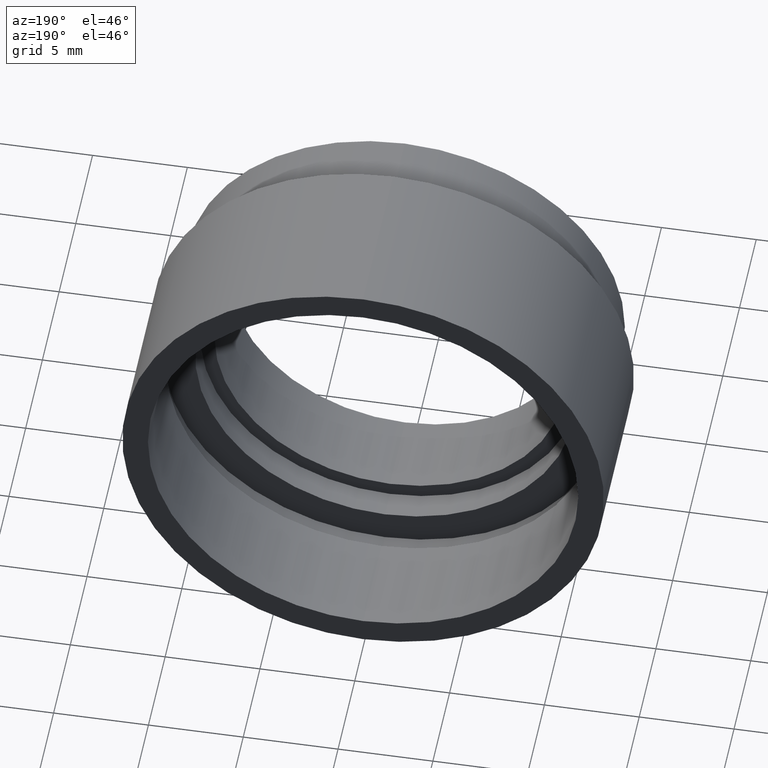
[diagram: clean part render]
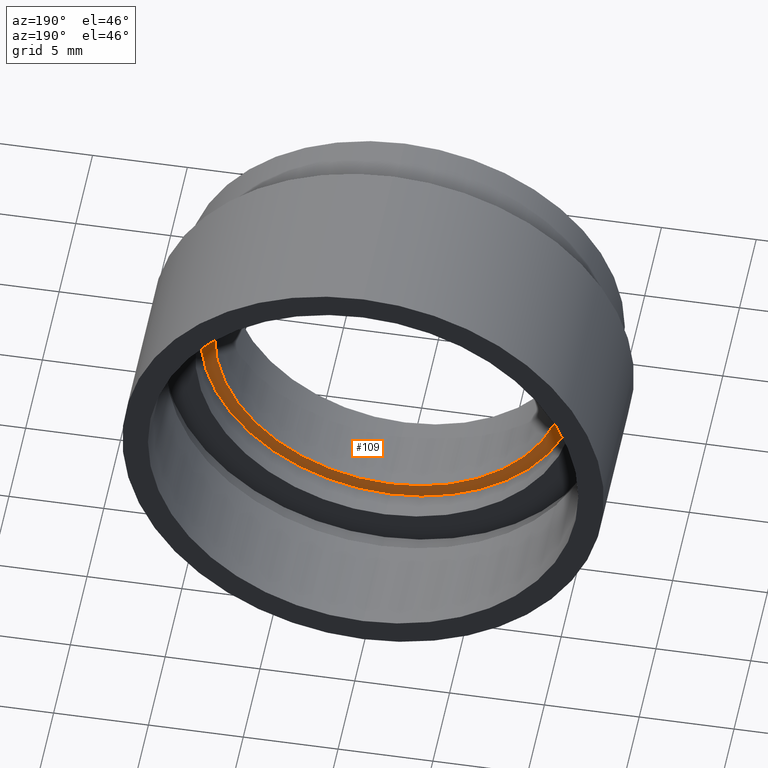
[diagram: same view with one face highlighted and labeled with its STEP entity id]
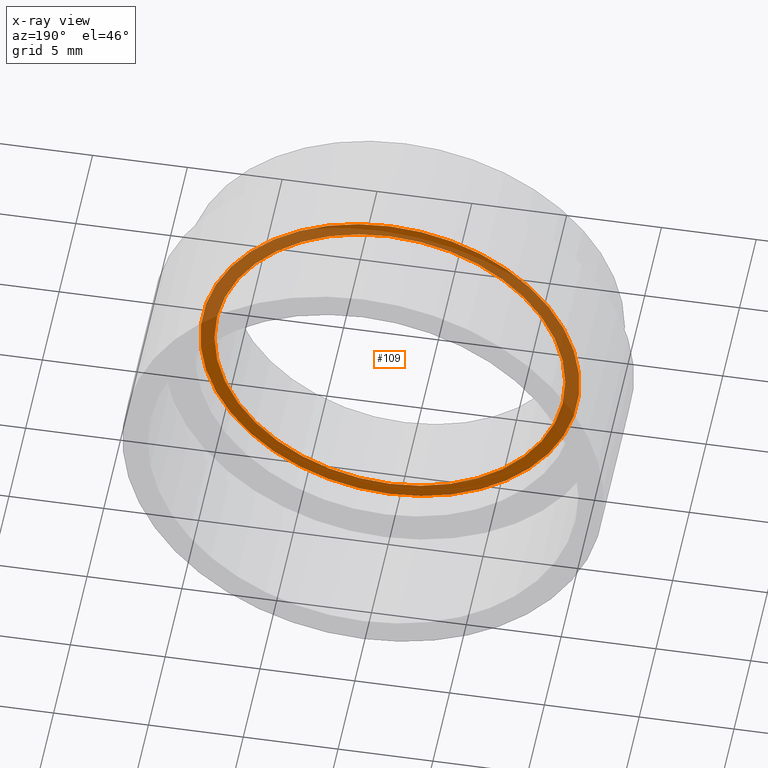
[diagram: x-ray of the same camera — body ghosted, the highlighted face saturated]
A machine part, auxiliary view. The second image highlights one B-rep face of the part: STEP entity #109.
The next image is the same camera in x-ray: the body ghosted, the highlighted face saturated — about 49% of this face is hidden behind the body in this view.
In plain terms, the highlighted planar face has unit normal (0, 1, 0).
Its self-contained STEP definition (entity closure, byte-faithful):
#10 = PLANE ( 'NONE',  #201 ) ;
#11 = CARTESIAN_POINT ( 'NONE',  ( 0.0000000000000000000, 4.500000000000000000, 0.0000000000000000000 ) ) ;
#41 = ORIENTED_EDGE ( 'NONE', *, *, #511, .T. ) ;
#94 = CARTESIAN_POINT ( 'NONE',  ( 0.0000000000000000000, 4.500000000000000000, 0.0000000000000000000 ) ) ;
#109 = ADVANCED_FACE ( 'NONE', ( #325, #112 ), #10, .T. ) ;
#112 = FACE_OUTER_BOUND ( 'NONE', #601, .T. ) ;
#123 = DIRECTION ( 'NONE',  ( 0.0000000000000000000, -0.0000000000000000000, 1.000000000000000000 ) ) ;
#126 = ORIENTED_EDGE ( 'NONE', *, *, #720, .F. ) ;
#145 = VERTEX_POINT ( 'NONE', #471 ) ;
#152 = EDGE_CURVE ( 'NONE', #159, #465, #626, .T. ) ;
#159 = VERTEX_POINT ( 'NONE', #474 ) ;
#168 = ORIENTED_EDGE ( 'NONE', *, *, #152, .F. ) ;
#187 = CIRCLE ( 'NONE', #371, 9.250000000000000000 ) ;
#201 = AXIS2_PLACEMENT_3D ( 'NONE', #403, #461, #123 ) ;
#241 = CARTESIAN_POINT ( 'NONE',  ( 0.0000000000000000000, 4.500000000000000900, -9.999999999999998200 ) ) ;
#290 = DIRECTION ( 'NONE',  ( -0.0000000000000000000, -1.000000000000000000, -0.0000000000000000000 ) ) ;
#325 = FACE_BOUND ( 'NONE', #705, .T. ) ;
#349 = CIRCLE ( 'NONE', #361, 9.250000000000000000 ) ;
#361 = AXIS2_PLACEMENT_3D ( 'NONE', #11, #290, #479 ) ;
#371 = AXIS2_PLACEMENT_3D ( 'NONE', #94, #430, #700 ) ;
#373 = CARTESIAN_POINT ( 'NONE',  ( 0.0000000000000000000, 4.500000000000000900, 0.0000000000000000000 ) ) ;
#403 = CARTESIAN_POINT ( 'NONE',  ( 9.999999999999998200, 4.500000000000000900, 0.0000000000000000000 ) ) ;
#415 = DIRECTION ( 'NONE',  ( 0.0000000000000000000, 0.0000000000000000000, -1.000000000000000000 ) ) ;
#430 = DIRECTION ( 'NONE',  ( -0.0000000000000000000, -1.000000000000000000, -0.0000000000000000000 ) ) ;
#450 = AXIS2_PLACEMENT_3D ( 'NONE', #373, #538, #647 ) ;
#461 = DIRECTION ( 'NONE',  ( 0.0000000000000000000, 1.000000000000000000, 0.0000000000000000000 ) ) ;
#465 = VERTEX_POINT ( 'NONE', #241 ) ;
#471 = CARTESIAN_POINT ( 'NONE',  ( 1.132798289211301700E-015, 4.500000000000000000, 9.250000000000000000 ) ) ;
#474 = CARTESIAN_POINT ( 'NONE',  ( 1.224646799147353100E-015, 4.500000000000000900, 9.999999999999998200 ) ) ;
#479 = DIRECTION ( 'NONE',  ( 0.0000000000000000000, 0.0000000000000000000, -1.000000000000000000 ) ) ;
#511 = EDGE_CURVE ( 'NONE', #145, #621, #349, .T. ) ;
#538 = DIRECTION ( 'NONE',  ( -0.0000000000000000000, -1.000000000000000000, -0.0000000000000000000 ) ) ;
#571 = ORIENTED_EDGE ( 'NONE', *, *, #660, .T. ) ;
#578 = CIRCLE ( 'NONE', #450, 9.999999999999998200 ) ;
#587 = CARTESIAN_POINT ( 'NONE',  ( 0.0000000000000000000, 4.500000000000000900, 0.0000000000000000000 ) ) ;
#588 = CARTESIAN_POINT ( 'NONE',  ( 0.0000000000000000000, 4.500000000000000000, -9.250000000000000000 ) ) ;
#601 = EDGE_LOOP ( 'NONE', ( #126, #168 ) ) ;
#621 = VERTEX_POINT ( 'NONE', #588 ) ;
#626 = CIRCLE ( 'NONE', #727, 9.999999999999998200 ) ;
#639 = DIRECTION ( 'NONE',  ( -0.0000000000000000000, -1.000000000000000000, -0.0000000000000000000 ) ) ;
#647 = DIRECTION ( 'NONE',  ( 0.0000000000000000000, 0.0000000000000000000, -1.000000000000000000 ) ) ;
#660 = EDGE_CURVE ( 'NONE', #621, #145, #187, .T. ) ;
#700 = DIRECTION ( 'NONE',  ( 0.0000000000000000000, 0.0000000000000000000, -1.000000000000000000 ) ) ;
#705 = EDGE_LOOP ( 'NONE', ( #571, #41 ) ) ;
#720 = EDGE_CURVE ( 'NONE', #465, #159, #578, .T. ) ;
#727 = AXIS2_PLACEMENT_3D ( 'NONE', #587, #639, #415 ) ;